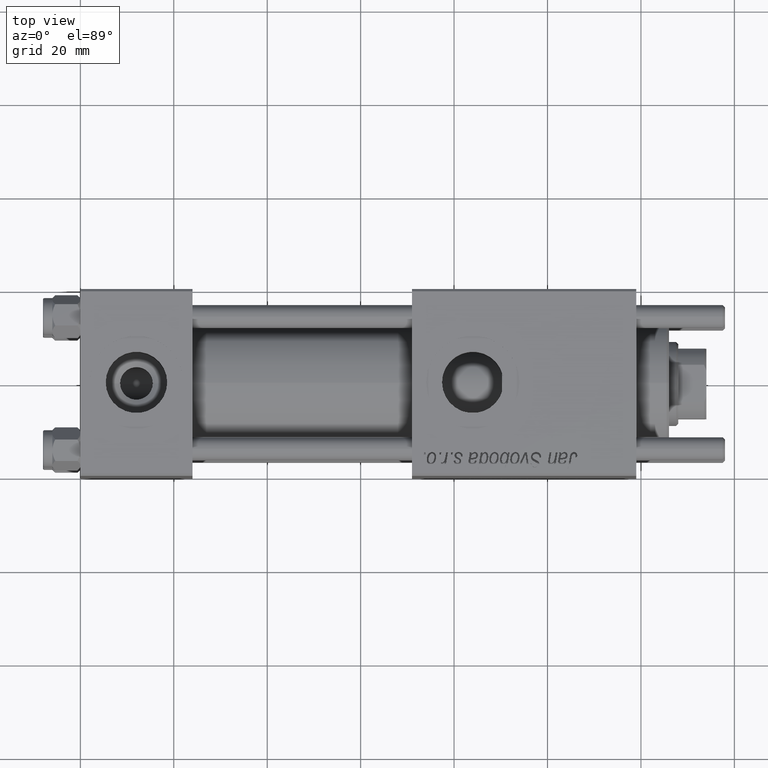
[diagram: clean part render]
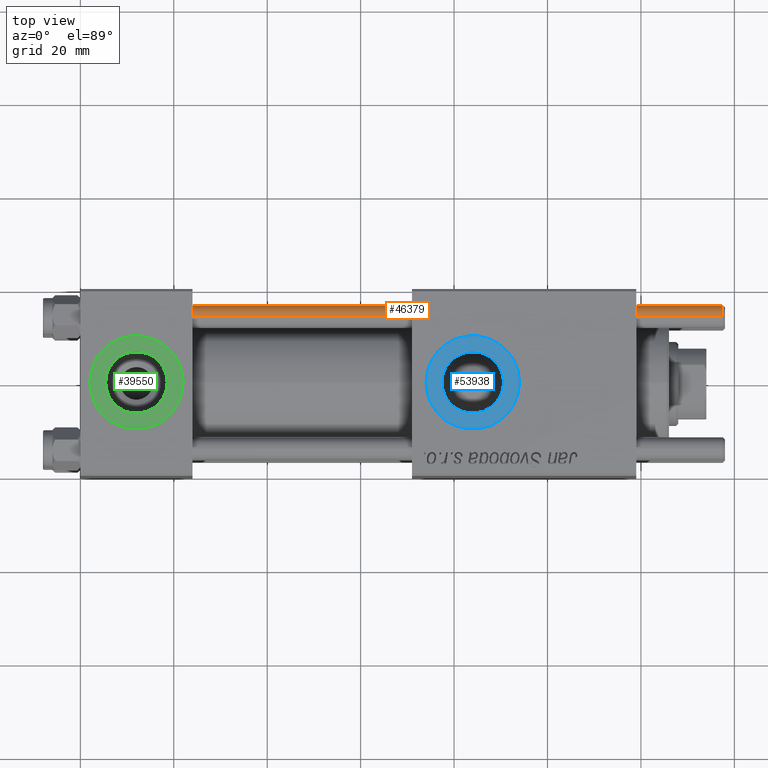
[diagram: same view with three faces highlighted in distinct colors, each labeled with its STEP entity id]
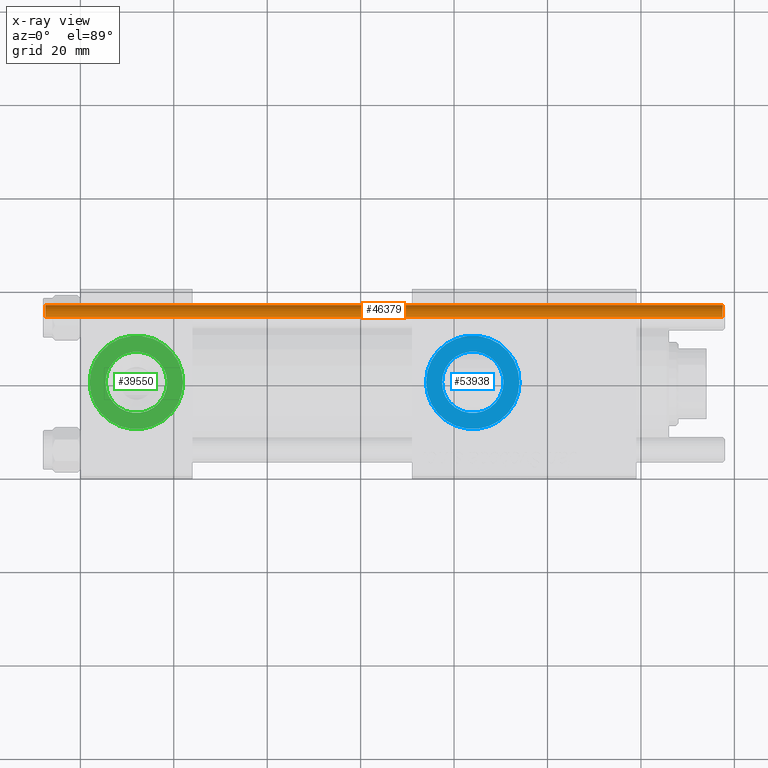
[diagram: x-ray of the same camera — body ghosted, the three highlighted faces saturated]
A machine part, top view with three faces highlighted in distinct colors.
The next image is the same camera in x-ray (body ghosted, the three faces saturated) — at least one of them is partly hidden behind the body in this view.
Their STEP definitions:

[orange] entity #46379 — the highlighted cylindrical surface (edge-blend (fillet) strip) has radius 2.5 mm, axis along (1, -0, -0).
#3306 = CARTESIAN_POINT ( 'NONE',  ( 2.500000000000000000, 3.061616997868383141E-16, 146.0000000000000000 ) ) ;
#3534 = VERTEX_POINT ( 'NONE', #20039 ) ;
#4259 = EDGE_LOOP ( 'NONE', ( #5801, #4599, #42997, #22137 ) ) ;
#4313 = DIRECTION ( 'NONE',  ( -0.000000000000000000, -0.000000000000000000, -1.000000000000000000 ) ) ;
#4436 = VECTOR ( 'NONE', #4999, 1000.000000000000000 ) ;
#4599 = ORIENTED_EDGE ( 'NONE', *, *, #42910, .T. ) ;
#4999 = DIRECTION ( 'NONE',  ( -0.000000000000000000, -0.000000000000000000, -1.000000000000000000 ) ) ;
#5801 = ORIENTED_EDGE ( 'NONE', *, *, #37821, .T. ) ;
#5864 = CARTESIAN_POINT ( 'NONE',  ( 2.500000000000000000, 3.061616997868383141E-16, 0.5000000000000559552 ) ) ;
#7890 = DIRECTION ( 'NONE',  ( 0.000000000000000000, 0.000000000000000000, -1.000000000000000000 ) ) ;
#8158 = LINE ( 'NONE', #56024, #4436 ) ;
#9216 = DIRECTION ( 'NONE',  ( -0.000000000000000000, -0.000000000000000000, 1.000000000000000000 ) ) ;
#11139 = CARTESIAN_POINT ( 'NONE',  ( -2.500000000000000000, 0.000000000000000000, 145.5000000000000284 ) ) ;
#12999 = EDGE_CURVE ( 'NONE', #28257, #17858, #8158, .T. ) ;
#13533 = CARTESIAN_POINT ( 'NONE',  ( 0.000000000000000000, 0.000000000000000000, 0.5000000000000559552 ) ) ;
#15175 = AXIS2_PLACEMENT_3D ( 'NONE', #13533, #9216, #44169 ) ;
#17858 = VERTEX_POINT ( 'NONE', #34367 ) ;
#20039 = CARTESIAN_POINT ( 'NONE',  ( 2.500000000000000000, 3.061616997868383141E-16, 145.5000000000000284 ) ) ;
#21073 = LINE ( 'NONE', #3306, #43537 ) ;
#22137 = ORIENTED_EDGE ( 'NONE', *, *, #12999, .F. ) ;
#26030 = CIRCLE ( 'NONE', #37032, 2.500000000000000000 ) ;
#26092 = FACE_OUTER_BOUND ( 'NONE', #4259, .T. ) ;
#26652 = CYLINDRICAL_SURFACE ( 'NONE', #53751, 2.500000000000000000 ) ;
#28257 = VERTEX_POINT ( 'NONE', #11139 ) ;
#34367 = CARTESIAN_POINT ( 'NONE',  ( -2.500000000000000000, 0.000000000000000000, 0.5000000000000559552 ) ) ;
#34835 = DIRECTION ( 'NONE',  ( 1.000000000000000000, 0.000000000000000000, 0.000000000000000000 ) ) ;
#35919 = VERTEX_POINT ( 'NONE', #5864 ) ;
#37032 = AXIS2_PLACEMENT_3D ( 'NONE', #39127, #7890, #34835 ) ;
#37821 = EDGE_CURVE ( 'NONE', #28257, #3534, #26030, .T. ) ;
#39127 = CARTESIAN_POINT ( 'NONE',  ( 0.000000000000000000, 0.000000000000000000, 145.5000000000000284 ) ) ;
#41985 = EDGE_CURVE ( 'NONE', #35919, #17858, #44443, .T. ) ;
#42910 = EDGE_CURVE ( 'NONE', #3534, #35919, #21073, .T. ) ;
#42997 = ORIENTED_EDGE ( 'NONE', *, *, #41985, .T. ) ;
#43537 = VECTOR ( 'NONE', #56618, 1000.000000000000000 ) ;
#44121 = CARTESIAN_POINT ( 'NONE',  ( 0.000000000000000000, 0.000000000000000000, 146.0000000000000000 ) ) ;
#44169 = DIRECTION ( 'NONE',  ( 1.000000000000000000, 0.000000000000000000, 0.000000000000000000 ) ) ;
#44443 = CIRCLE ( 'NONE', #15175, 2.500000000000000000 ) ;
#46379 = ADVANCED_FACE ( 'NONE', ( #26092 ), #26652, .T. ) ;
#52747 = DIRECTION ( 'NONE',  ( -1.000000000000000000, 0.000000000000000000, 0.000000000000000000 ) ) ;
#53751 = AXIS2_PLACEMENT_3D ( 'NONE', #44121, #4313, #52747 ) ;
#56024 = CARTESIAN_POINT ( 'NONE',  ( -2.500000000000000000, 0.000000000000000000, 146.0000000000000000 ) ) ;
#56618 = DIRECTION ( 'NONE',  ( -0.000000000000000000, -0.000000000000000000, -1.000000000000000000 ) ) ;

[blue] entity #53938 — the highlighted planar face has unit normal (0, 0, 1).
#2899 = EDGE_CURVE ( 'NONE', #54881, #54122, #6009, .T. ) ;
#5339 = VERTEX_POINT ( 'NONE', #49205 ) ;
#5980 = EDGE_CURVE ( 'NONE', #5339, #27166, #27097, .T. ) ;
#6009 = CIRCLE ( 'NONE', #17901, 10.00000000000154898 ) ;
#6051 = AXIS2_PLACEMENT_3D ( 'NONE', #22775, #27064, #39401 ) ;
#9077 = CARTESIAN_POINT ( 'NONE',  ( 84.00000000000000000, -1.734723475976806897E-15, 19.80000000000000071 ) ) ;
#9431 = CARTESIAN_POINT ( 'NONE',  ( 84.00000000000000000, -1.734723475976806897E-15, 19.80000000000000071 ) ) ;
#10034 = ORIENTED_EDGE ( 'NONE', *, *, #28093, .T. ) ;
#15867 = AXIS2_PLACEMENT_3D ( 'NONE', #31204, #23731, #18303 ) ;
#17901 = AXIS2_PLACEMENT_3D ( 'NONE', #9077, #30302, #52089 ) ;
#18279 = ORIENTED_EDGE ( 'NONE', *, *, #43006, .T. ) ;
#18303 = DIRECTION ( 'NONE',  ( 1.000000000000000000, 0.000000000000000000, -0.000000000000000000 ) ) ;
#18567 = CIRCLE ( 'NONE', #34103, 6.580000000001542837 ) ;
#18583 = FACE_BOUND ( 'NONE', #52737, .T. ) ;
#18898 = AXIS2_PLACEMENT_3D ( 'NONE', #49559, #28618, #42071 ) ;
#22080 = EDGE_LOOP ( 'NONE', ( #27088, #18279 ) ) ;
#22775 = CARTESIAN_POINT ( 'NONE',  ( 84.00000000000000000, -1.734723475976806897E-15, 19.80000000000000071 ) ) ;
#23731 = DIRECTION ( 'NONE',  ( 0.000000000000000000, 0.000000000000000000, 1.000000000000000000 ) ) ;
#25776 = DIRECTION ( 'NONE',  ( -0.000000000000000000, -0.000000000000000000, -1.000000000000000000 ) ) ;
#27064 = DIRECTION ( 'NONE',  ( 0.000000000000000000, 0.000000000000000000, 1.000000000000000000 ) ) ;
#27088 = ORIENTED_EDGE ( 'NONE', *, *, #2899, .T. ) ;
#27097 = CIRCLE ( 'NONE', #18898, 6.580000000001542837 ) ;
#27166 = VERTEX_POINT ( 'NONE', #49336 ) ;
#28093 = EDGE_CURVE ( 'NONE', #27166, #5339, #18567, .T. ) ;
#28618 = DIRECTION ( 'NONE',  ( -0.000000000000000000, -0.000000000000000000, -1.000000000000000000 ) ) ;
#29764 = ORIENTED_EDGE ( 'NONE', *, *, #5980, .T. ) ;
#30302 = DIRECTION ( 'NONE',  ( 0.000000000000000000, 0.000000000000000000, 1.000000000000000000 ) ) ;
#31204 = CARTESIAN_POINT ( 'NONE',  ( 84.00000000000000000, -1.734723475976806897E-15, 19.80000000000000071 ) ) ;
#34103 = AXIS2_PLACEMENT_3D ( 'NONE', #9431, #25776, #39527 ) ;
#36644 = FACE_OUTER_BOUND ( 'NONE', #22080, .T. ) ;
#39401 = DIRECTION ( 'NONE',  ( 1.000000000000000000, 0.000000000000000000, 0.000000000000000000 ) ) ;
#39527 = DIRECTION ( 'NONE',  ( 1.000000000000000000, 0.000000000000000000, 0.000000000000000000 ) ) ;
#40850 = CIRCLE ( 'NONE', #6051, 10.00000000000154898 ) ;
#41205 = PLANE ( 'NONE',  #15867 ) ;
#42071 = DIRECTION ( 'NONE',  ( 1.000000000000000000, 0.000000000000000000, 0.000000000000000000 ) ) ;
#43006 = EDGE_CURVE ( 'NONE', #54122, #54881, #40850, .T. ) ;
#46178 = CARTESIAN_POINT ( 'NONE',  ( 94.00000000000154898, -1.734723475976806897E-15, 19.80000000000000071 ) ) ;
#47470 = CARTESIAN_POINT ( 'NONE',  ( 73.99999999999845102, -5.100766768292640183E-16, 19.80000000000000071 ) ) ;
#49205 = CARTESIAN_POINT ( 'NONE',  ( 90.58000000000154728, -9.289058821376599092E-16, 19.80000000000000071 ) ) ;
#49336 = CARTESIAN_POINT ( 'NONE',  ( 77.41999999999846693, -1.734723475976806897E-15, 19.80000000000000071 ) ) ;
#49559 = CARTESIAN_POINT ( 'NONE',  ( 84.00000000000000000, -1.734723475976806897E-15, 19.80000000000000071 ) ) ;
#52089 = DIRECTION ( 'NONE',  ( 1.000000000000000000, 0.000000000000000000, 0.000000000000000000 ) ) ;
#52737 = EDGE_LOOP ( 'NONE', ( #10034, #29764 ) ) ;
#53938 = ADVANCED_FACE ( 'NONE', ( #18583, #36644 ), #41205, .T. ) ;
#54122 = VERTEX_POINT ( 'NONE', #47470 ) ;
#54881 = VERTEX_POINT ( 'NONE', #46178 ) ;

[green] entity #39550 — the highlighted planar face has unit normal (0, 0, 1).
#30 = EDGE_CURVE ( 'NONE', #16235, #50817, #50749, .T. ) ;
#539 = CARTESIAN_POINT ( 'NONE',  ( 22.00000000000000000, 1.540743955509788682E-30, 19.79999999999999716 ) ) ;
#870 = CARTESIAN_POINT ( 'NONE',  ( 12.00000000000000000, 1.540743955509788682E-30, 19.79999999999999716 ) ) ;
#960 = DIRECTION ( 'NONE',  ( 1.000000000000000000, 0.000000000000000000, 0.000000000000000000 ) ) ;
#5181 = PLANE ( 'NONE',  #40685 ) ;
#8233 = EDGE_CURVE ( 'NONE', #25685, #19481, #56485, .T. ) ;
#8780 = DIRECTION ( 'NONE',  ( 0.000000000000000000, 0.000000000000000000, 1.000000000000000000 ) ) ;
#12433 = CARTESIAN_POINT ( 'NONE',  ( 12.00000000000000000, 1.540743955509788682E-30, 19.79999999999999716 ) ) ;
#13077 = CARTESIAN_POINT ( 'NONE',  ( 12.00000000000000000, 1.540743955509788682E-30, 19.79999999999999716 ) ) ;
#13571 = DIRECTION ( 'NONE',  ( 0.000000000000000000, 0.000000000000000000, 1.000000000000000000 ) ) ;
#14056 = DIRECTION ( 'NONE',  ( 0.000000000000000000, 0.000000000000000000, 1.000000000000000000 ) ) ;
#14990 = DIRECTION ( 'NONE',  ( 0.000000000000000000, 0.000000000000000000, 1.000000000000000000 ) ) ;
#15638 = CIRCLE ( 'NONE', #27525, 6.579999999999999183 ) ;
#16235 = VERTEX_POINT ( 'NONE', #54667 ) ;
#19161 = CARTESIAN_POINT ( 'NONE',  ( 18.57999999999999829, 1.540743955509788682E-30, 19.79999999999999716 ) ) ;
#19481 = VERTEX_POINT ( 'NONE', #19161 ) ;
#19907 = ORIENTED_EDGE ( 'NONE', *, *, #8233, .F. ) ;
#21118 = CARTESIAN_POINT ( 'NONE',  ( 12.00000000000000000, 1.540743955509788682E-30, 19.79999999999999716 ) ) ;
#21422 = AXIS2_PLACEMENT_3D ( 'NONE', #12433, #13571, #21887 ) ;
#21887 = DIRECTION ( 'NONE',  ( 1.000000000000000000, 0.000000000000000000, 0.000000000000000000 ) ) ;
#22025 = EDGE_CURVE ( 'NONE', #19481, #25685, #15638, .T. ) ;
#25685 = VERTEX_POINT ( 'NONE', #48005 ) ;
#26257 = DIRECTION ( 'NONE',  ( 1.000000000000000000, 0.000000000000000000, 0.000000000000000000 ) ) ;
#27525 = AXIS2_PLACEMENT_3D ( 'NONE', #31359, #52856, #960 ) ;
#30289 = DIRECTION ( 'NONE',  ( 1.000000000000000000, 0.000000000000000000, 0.000000000000000000 ) ) ;
#31267 = FACE_BOUND ( 'NONE', #32667, .T. ) ;
#31359 = CARTESIAN_POINT ( 'NONE',  ( 12.00000000000000000, 1.540743955509788682E-30, 19.79999999999999716 ) ) ;
#31500 = CIRCLE ( 'NONE', #21422, 9.999999999999998224 ) ;
#31549 = DIRECTION ( 'NONE',  ( 1.000000000000000000, 0.000000000000000000, -0.000000000000000000 ) ) ;
#32667 = EDGE_LOOP ( 'NONE', ( #42490, #19907 ) ) ;
#32688 = EDGE_LOOP ( 'NONE', ( #43217, #37212 ) ) ;
#35849 = FACE_OUTER_BOUND ( 'NONE', #32688, .T. ) ;
#37029 = AXIS2_PLACEMENT_3D ( 'NONE', #21118, #8780, #30289 ) ;
#37212 = ORIENTED_EDGE ( 'NONE', *, *, #30, .T. ) ;
#39550 = ADVANCED_FACE ( 'NONE', ( #31267, #35849 ), #5181, .T. ) ;
#40685 = AXIS2_PLACEMENT_3D ( 'NONE', #870, #14056, #31549 ) ;
#42490 = ORIENTED_EDGE ( 'NONE', *, *, #22025, .F. ) ;
#43217 = ORIENTED_EDGE ( 'NONE', *, *, #56296, .T. ) ;
#48005 = CARTESIAN_POINT ( 'NONE',  ( 5.420000000000000817, 8.058175938389596335E-16, 19.79999999999999716 ) ) ;
#50749 = CIRCLE ( 'NONE', #37029, 9.999999999999998224 ) ;
#50817 = VERTEX_POINT ( 'NONE', #539 ) ;
#52856 = DIRECTION ( 'NONE',  ( 0.000000000000000000, 0.000000000000000000, 1.000000000000000000 ) ) ;
#54667 = CARTESIAN_POINT ( 'NONE',  ( 2.000000000000003553, 1.224646799147354440E-15, 19.79999999999999716 ) ) ;
#55573 = AXIS2_PLACEMENT_3D ( 'NONE', #13077, #14990, #26257 ) ;
#56296 = EDGE_CURVE ( 'NONE', #50817, #16235, #31500, .T. ) ;
#56485 = CIRCLE ( 'NONE', #55573, 6.579999999999999183 ) ;